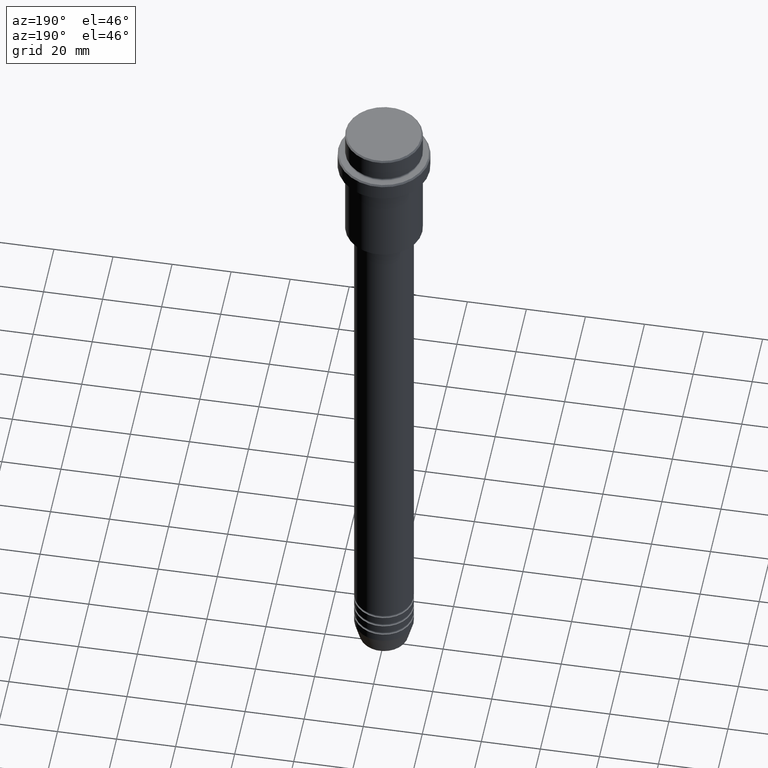
[diagram: clean part render]
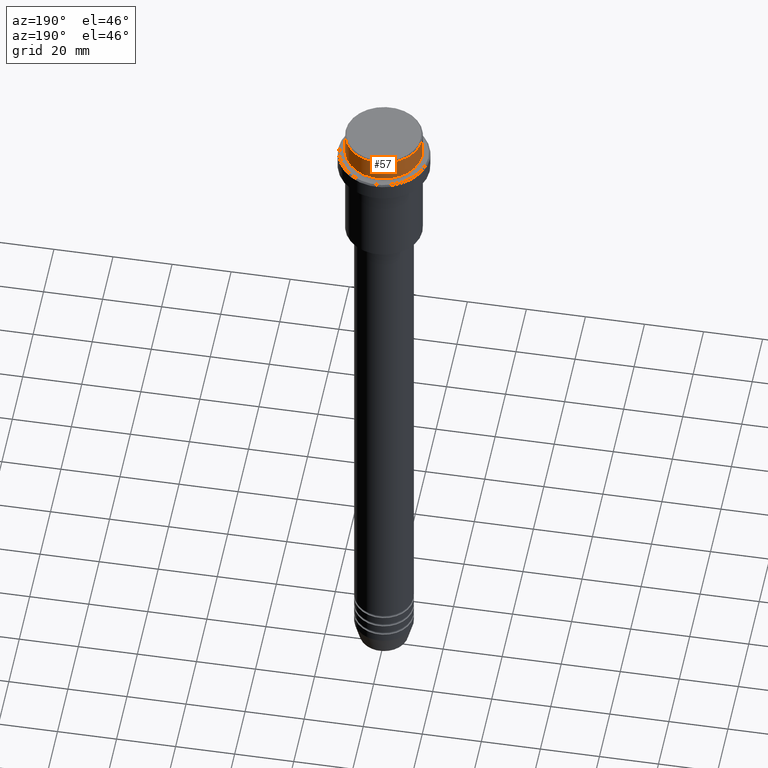
[diagram: same view with one face highlighted and labeled with its STEP entity id]
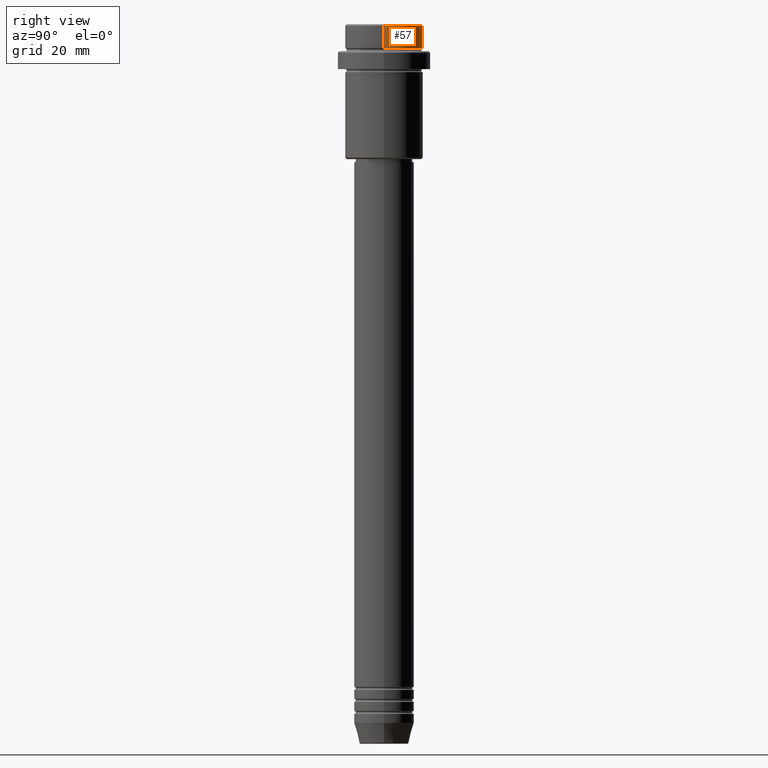
[diagram: same view with one face highlighted and labeled with its STEP entity id]
A machine part, auxiliary view. The second image highlights one B-rep face of the part: STEP entity #57.
A second angle (right view) of the same face is appended — the face is thin or edge-on in the first view.
In plain terms, the highlighted cylindrical surface (partial cylindrical patch) has radius 13 mm, axis along (-0, -0, 1).
Its self-contained STEP definition (entity closure, byte-faithful):
#43 = EDGE_LOOP ( 'NONE', ( #775, #646, #237, #219 ) ) ;
#57 = ADVANCED_FACE ( 'NONE', ( #1163 ), #800, .T. ) ;
#58 = DIRECTION ( 'NONE',  ( -0.000000000000000000, -0.000000000000000000, 1.000000000000000000 ) ) ;
#112 = CARTESIAN_POINT ( 'NONE',  ( 12.99999999999999822, 0.000000000000000000, -0.4999999999999483746 ) ) ;
#114 = VERTEX_POINT ( 'NONE', #545 ) ;
#133 = LINE ( 'NONE', #1236, #582 ) ;
#150 = DIRECTION ( 'NONE',  ( -0.000000000000000000, -0.000000000000000000, 1.000000000000000000 ) ) ;
#188 = DIRECTION ( 'NONE',  ( 1.000000000000000000, 0.000000000000000000, 0.000000000000000000 ) ) ;
#219 = ORIENTED_EDGE ( 'NONE', *, *, #791, .F. ) ;
#237 = ORIENTED_EDGE ( 'NONE', *, *, #881, .T. ) ;
#340 = VERTEX_POINT ( 'NONE', #112 ) ;
#388 = AXIS2_PLACEMENT_3D ( 'NONE', #1135, #58, #1261 ) ;
#412 = VERTEX_POINT ( 'NONE', #1041 ) ;
#520 = DIRECTION ( 'NONE',  ( 1.000000000000000000, 0.000000000000000000, 0.000000000000000000 ) ) ;
#527 = CIRCLE ( 'NONE', #533, 12.99999999999999822 ) ;
#533 = AXIS2_PLACEMENT_3D ( 'NONE', #709, #939, #520 ) ;
#545 = CARTESIAN_POINT ( 'NONE',  ( 12.99999999999999822, 0.000000000000000000, -7.999999999999998224 ) ) ;
#582 = VECTOR ( 'NONE', #150, 1000.000000000000000 ) ;
#631 = CARTESIAN_POINT ( 'NONE',  ( -12.99999999999999822, 1.592040838891558898E-15, 0.000000000000000000 ) ) ;
#646 = ORIENTED_EDGE ( 'NONE', *, *, #1087, .T. ) ;
#709 = CARTESIAN_POINT ( 'NONE',  ( 0.000000000000000000, 0.000000000000000000, -0.4999999999999483746 ) ) ;
#752 = VECTOR ( 'NONE', #1073, 1000.000000000000000 ) ;
#775 = ORIENTED_EDGE ( 'NONE', *, *, #1296, .T. ) ;
#791 = EDGE_CURVE ( 'NONE', #114, #340, #133, .T. ) ;
#800 = CYLINDRICAL_SURFACE ( 'NONE', #388, 12.99999999999999822 ) ;
#822 = DIRECTION ( 'NONE',  ( -0.000000000000000000, -0.000000000000000000, 1.000000000000000000 ) ) ;
#881 = EDGE_CURVE ( 'NONE', #1091, #340, #527, .T. ) ;
#918 = CARTESIAN_POINT ( 'NONE',  ( 0.000000000000000000, 0.000000000000000000, -7.999999999999998224 ) ) ;
#939 = DIRECTION ( 'NONE',  ( 0.000000000000000000, 0.000000000000000000, -1.000000000000000000 ) ) ;
#964 = LINE ( 'NONE', #631, #752 ) ;
#987 = AXIS2_PLACEMENT_3D ( 'NONE', #918, #822, #188 ) ;
#1041 = CARTESIAN_POINT ( 'NONE',  ( -12.99999999999999822, 1.592040838891558898E-15, -7.999999999999998224 ) ) ;
#1067 = CARTESIAN_POINT ( 'NONE',  ( -12.99999999999999822, 1.592040838891558898E-15, -0.4999999999999483746 ) ) ;
#1073 = DIRECTION ( 'NONE',  ( -0.000000000000000000, -0.000000000000000000, 1.000000000000000000 ) ) ;
#1087 = EDGE_CURVE ( 'NONE', #412, #1091, #964, .T. ) ;
#1091 = VERTEX_POINT ( 'NONE', #1067 ) ;
#1135 = CARTESIAN_POINT ( 'NONE',  ( 0.000000000000000000, 0.000000000000000000, 0.000000000000000000 ) ) ;
#1163 = FACE_OUTER_BOUND ( 'NONE', #43, .T. ) ;
#1236 = CARTESIAN_POINT ( 'NONE',  ( 12.99999999999999822, 0.000000000000000000, 0.000000000000000000 ) ) ;
#1261 = DIRECTION ( 'NONE',  ( 1.000000000000000000, 0.000000000000000000, 0.000000000000000000 ) ) ;
#1296 = EDGE_CURVE ( 'NONE', #114, #412, #1312, .T. ) ;
#1312 = CIRCLE ( 'NONE', #987, 12.99999999999999822 ) ;